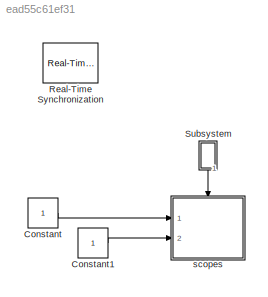
MODEL slx_ead55c61ef31
KIND model
CONFIG AbsTol = auto
CONFIG EnableMultiTasking = off
CONFIG FixedStep = Ts
CONFIG MaxStep = auto
CONFIG MinStep = auto
CONFIG RelTol = 1e-3
CONFIG SampleTimeConstraint = Unconstrained
CONFIG SolverName = FixedStepDiscrete
CONFIG StartTime = 0.0
CONFIG StopTime = 10
BLOCK [Constant] Constant
BLOCK [Constant] Constant1
BLOCK [Reference] Real-Time Synchronization  REF=sldrtlib/Real-Time
Synchronization
  Ports = []
  SourceBlock = sldrtlib/Real-Time\nSynchronization
  SourceProductBaseCode = WT
  SourceType = Simulink Desktop Real-Time Synchronization
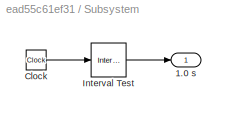
BLOCK [SubSystem] Subsystem
  NameLocation = left
  Ports = [0, 1]
  RequestExecContextInheritance = off
BLOCK [Outport] Subsystem/1.0 s
BLOCK [Clock] Subsystem/Clock
BLOCK [Reference] Subsystem/Interval Test  REF=simulink/Logic and Bit
Operations/Interval Test
  Ports = [1, 1]
  SourceBlock = simulink/Logic and Bit\nOperations/Interval Test
  SourceProductBaseCode = SL
  SourceType = Interval Test
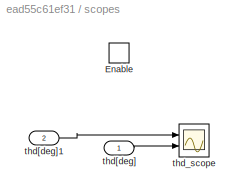
BLOCK [SubSystem] scopes
  Ports = [2, 0, 1]
  RequestExecContextInheritance = off
BLOCK [EnablePort] scopes/Enable
  Ports = []
BLOCK [Inport] scopes/thd[deg]
BLOCK [Inport] scopes/thd[deg]1
  Port = 2
BLOCK [Scope] scopes/thd_scope
  Floating = off
  NumInputPorts = 2
  Ports = [2]
  ScopeSpecificationString = Simulink.scopes.TimeScopeBlockCfg('CurrentConfiguration', extmgr.ConfigurationSet(extmgr.Configuration('Core','General UI',true),extmgr.Configuration('Core','Source UI',true),extmgr.Configuration('Sources','WiredSimulink',true,'DataLogging',true,'DataLoggingVariableName','thd_scope','DataLoggingSaveFormat','StructureWithTime'),extmgr.Configuration('Visuals','Time Domain',true,'SerializedDisplays',...<+1536ch>
LINE Constant1:1 -> scopes:2
LINE Constant:1 -> scopes:1
LINE Subsystem/Clock:1 -> Subsystem/Interval Test:1
LINE Subsystem/Interval Test:1 -> Subsystem/1.0 s:1
LINE Subsystem:1 -> scopes:enable
LINE scopes/thd[deg]1:1 -> scopes/thd_scope:1
LINE scopes/thd[deg]:1 -> scopes/thd_scope:2
